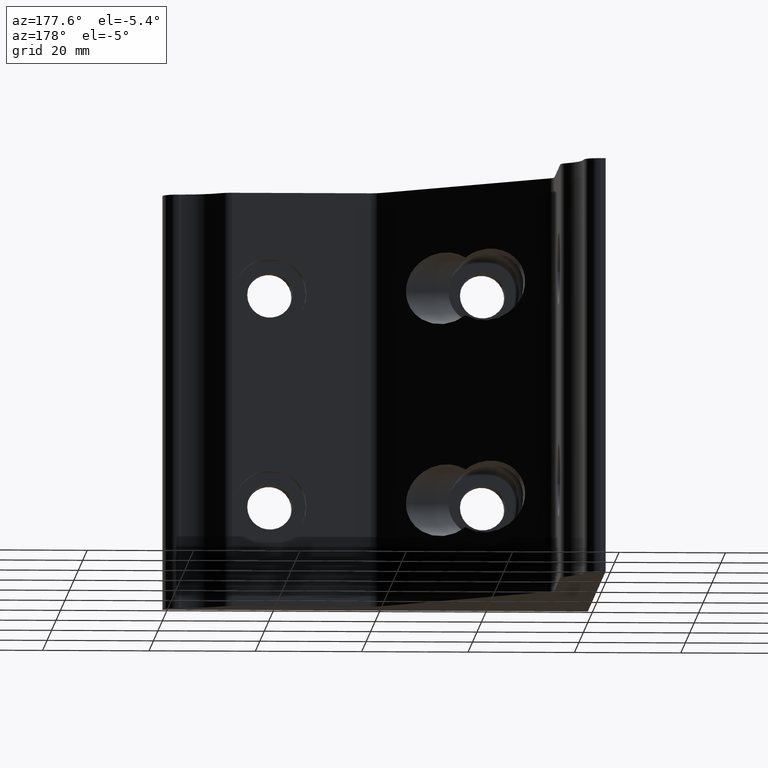
[diagram: clean part render]
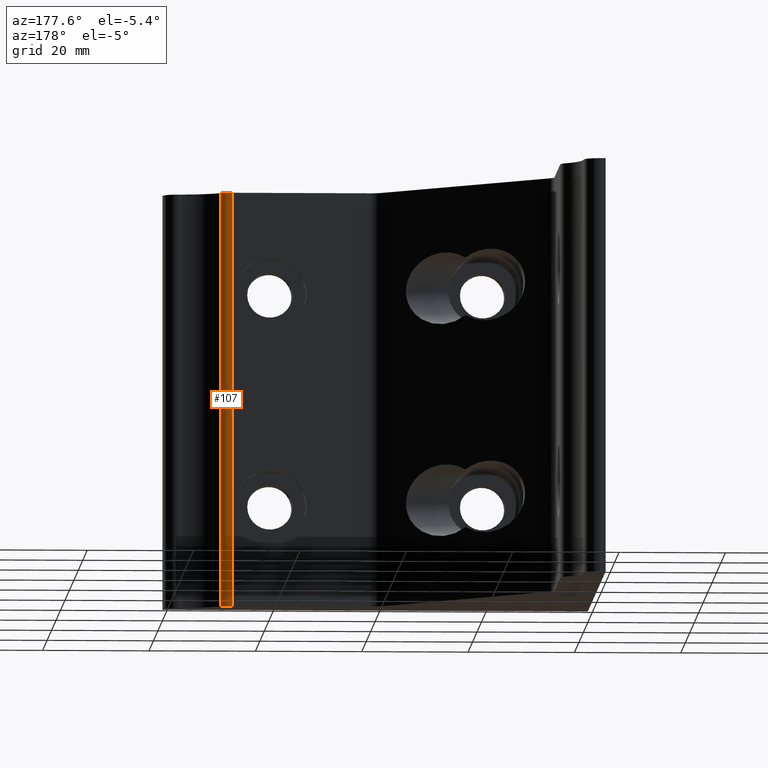
[diagram: same view with one face highlighted and labeled with its STEP entity id]
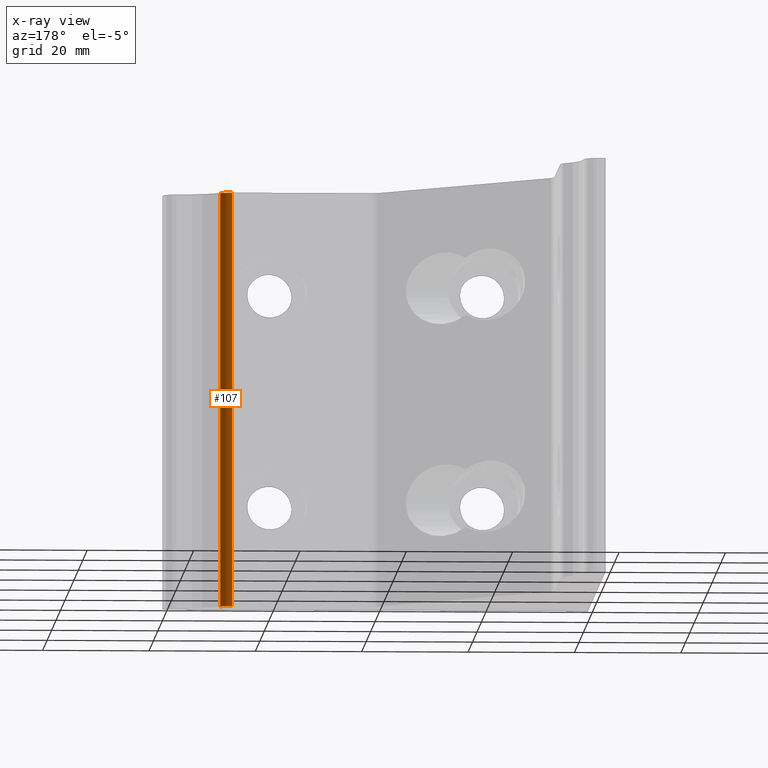
[diagram: x-ray of the same camera — body ghosted, the highlighted face saturated]
A machine part, auxiliary view. The second image highlights one B-rep face of the part: STEP entity #107.
The next image is the same camera in x-ray: the body ghosted, the highlighted face saturated — about 0% of this face is hidden behind the body in this view.
In plain terms, the highlighted cylindrical surface (edge-blend (fillet) strip) has radius 3 mm, axis along (0, 0, 1).
Its self-contained STEP definition (entity closure, byte-faithful):
#48=CARTESIAN_POINT('',(69.394278322275113,7.076726907620014,-39.0));
#49=VERTEX_POINT('',#48);
#57=CARTESIAN_POINT('',(69.394278322275113,7.076726907620014,39.0));
#58=VERTEX_POINT('',#57);
#59=CARTESIAN_POINT('',(69.394278322275113,7.076726907620014,-39.0));
#60=DIRECTION('',(0.0,0.0,1.0));
#61=VECTOR('',#60,78.0);
#62=LINE('',#59,#61);
#63=EDGE_CURVE('',#49,#58,#62,.T.);
#75=CARTESIAN_POINT('',(67.229284856966046,4.999998891960786,-78.999973803528064));
#76=DIRECTION('',(0.0,0.0,1.0));
#77=DIRECTION('',(0.721664650576184,0.692242827415896,0.0));
#78=AXIS2_PLACEMENT_3D('',#75,#76,#77);
#79=CYLINDRICAL_SURFACE('',#78,2.999999325975750);
#80=ORIENTED_EDGE('',*,*,#63,.F.);
#81=CARTESIAN_POINT('',(67.229284856966046,7.999998217936536,-39.0));
#82=VERTEX_POINT('',#81);
#83=CARTESIAN_POINT('',(67.229284856966046,4.999998891960786,-39.0));
#84=DIRECTION('',(0.0,0.0,1.0));
#85=DIRECTION('',(0.0,1.0,0.0));
#86=AXIS2_PLACEMENT_3D('',#83,#84,#85);
#87=CIRCLE('',#86,2.999999325975750);
#88=EDGE_CURVE('',#49,#82,#87,.T.);
#89=ORIENTED_EDGE('',*,*,#88,.T.);
#90=CARTESIAN_POINT('',(67.229284856966046,7.999998217936536,39.0));
#91=VERTEX_POINT('',#90);
#92=CARTESIAN_POINT('',(67.229284856966046,7.999998217936536,-39.0));
#93=DIRECTION('',(0.0,0.0,1.0));
#94=VECTOR('',#93,78.0);
#95=LINE('',#92,#94);
#96=EDGE_CURVE('',#82,#91,#95,.T.);
#97=ORIENTED_EDGE('',*,*,#96,.T.);
#98=CARTESIAN_POINT('',(67.229284856966046,4.999998891960786,39.0));
#99=DIRECTION('',(0.0,0.0,1.0));
#100=DIRECTION('',(0.0,1.0,0.0));
#101=AXIS2_PLACEMENT_3D('',#98,#99,#100);
#102=CIRCLE('',#101,2.999999325975750);
#103=EDGE_CURVE('',#58,#91,#102,.T.);
#104=ORIENTED_EDGE('',*,*,#103,.F.);
#105=EDGE_LOOP('',(#80,#89,#97,#104));
#106=FACE_OUTER_BOUND('',#105,.T.);
#107=ADVANCED_FACE('',(#106),#79,.T.);